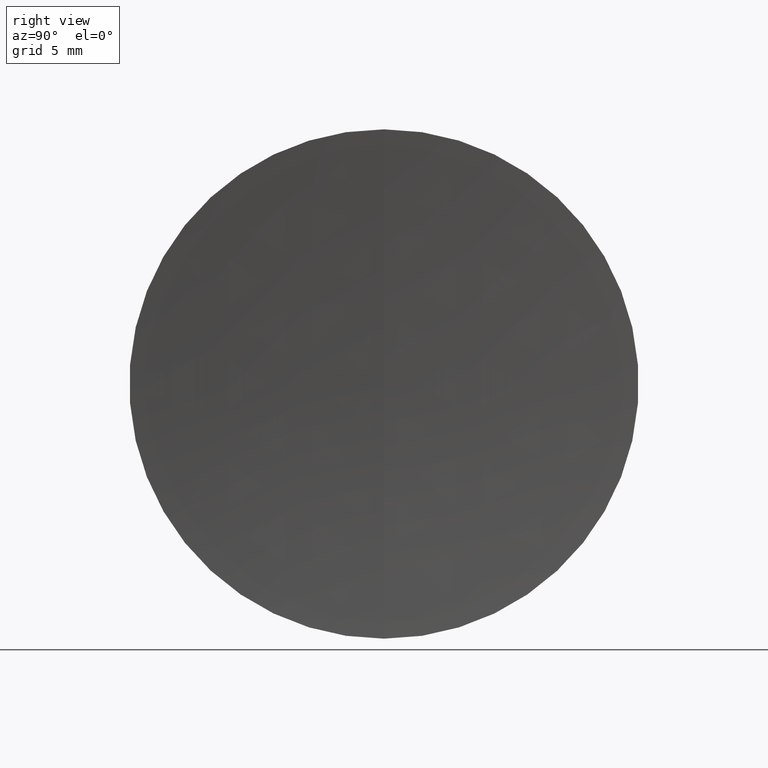
[diagram: clean part render]
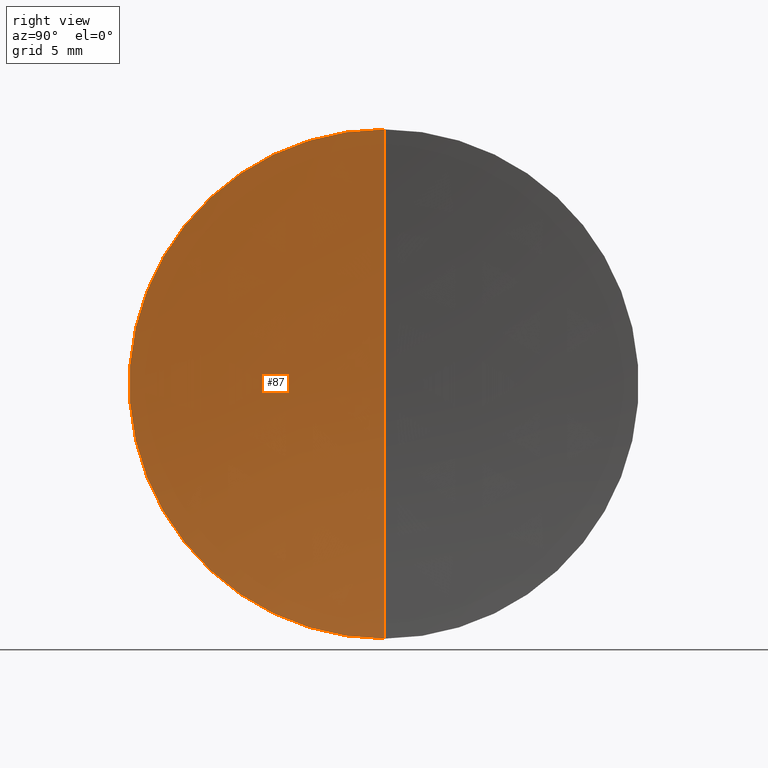
[diagram: same view with one face highlighted and labeled with its STEP entity id]
A machine part, right view. The second image highlights one B-rep face of the part: STEP entity #87.
In plain terms, the highlighted spherical surface has radius 134 mm.
Its self-contained STEP definition (entity closure, byte-faithful):
#1 = AXIS2_PLACEMENT_3D ( 'NONE', #175, #86, #236 ) ;
#3 = ORIENTED_EDGE ( 'NONE', *, *, #345, .F. ) ;
#11 = CIRCLE ( 'NONE', #1, 134.0000000000000000 ) ;
#15 = AXIS2_PLACEMENT_3D ( 'NONE', #334, #314, #52 ) ;
#33 = VERTEX_POINT ( 'NONE', #185 ) ;
#51 = CIRCLE ( 'NONE', #201, 12.70000000000012700 ) ;
#52 = DIRECTION ( 'NONE',  ( 0.0000000000000000000, 0.0000000000000000000, -1.000000000000000000 ) ) ;
#86 = DIRECTION ( 'NONE',  ( 0.0000000000000000000, -1.000000000000000000, -1.224646799147353200E-016 ) ) ;
#87 = ADVANCED_FACE ( 'NONE', ( #266 ), #152, .F. ) ;
#91 = VERTEX_POINT ( 'NONE', #193 ) ;
#95 = DIRECTION ( 'NONE',  ( 0.0000000000000000000, 0.0000000000000000000, 1.000000000000000000 ) ) ;
#120 = CARTESIAN_POINT ( 'NONE',  ( 476.3404997922064000, 0.0000000000000000000, 0.0000000000000000000 ) ) ;
#121 = CARTESIAN_POINT ( 'NONE',  ( 342.9436857372973000, 0.0000000000000000000, 12.70000000000012700 ) ) ;
#149 = ORIENTED_EDGE ( 'NONE', *, *, #283, .F. ) ;
#152 = SPHERICAL_SURFACE ( 'NONE', #15, 134.0000000000000000 ) ;
#156 = ORIENTED_EDGE ( 'NONE', *, *, #230, .T. ) ;
#169 = CARTESIAN_POINT ( 'NONE',  ( 342.9436857372973000, 0.0000000000000000000, 0.0000000000000000000 ) ) ;
#175 = CARTESIAN_POINT ( 'NONE',  ( 476.3404997922064000, 0.0000000000000000000, 0.0000000000000000000 ) ) ;
#184 = VERTEX_POINT ( 'NONE', #121 ) ;
#185 = CARTESIAN_POINT ( 'NONE',  ( 342.3404997922064000, 0.0000000000000000000, -8.205133554287267500E-015 ) ) ;
#188 = AXIS2_PLACEMENT_3D ( 'NONE', #120, #219, #95 ) ;
#193 = CARTESIAN_POINT ( 'NONE',  ( 342.9436857372973000, 1.555301434917154200E-015, -12.70000000000012700 ) ) ;
#201 = AXIS2_PLACEMENT_3D ( 'NONE', #169, #285, #331 ) ;
#219 = DIRECTION ( 'NONE',  ( 0.0000000000000000000, 1.000000000000000000, -0.0000000000000000000 ) ) ;
#230 = EDGE_CURVE ( 'NONE', #91, #33, #292, .T. ) ;
#233 = EDGE_LOOP ( 'NONE', ( #149, #3, #156 ) ) ;
#236 = DIRECTION ( 'NONE',  ( 0.0000000000000000000, 1.224646799147353500E-016, -1.000000000000000000 ) ) ;
#266 = FACE_OUTER_BOUND ( 'NONE', #233, .T. ) ;
#283 = EDGE_CURVE ( 'NONE', #184, #33, #11, .T. ) ;
#285 = DIRECTION ( 'NONE',  ( -1.000000000000000000, -0.0000000000000000000, -0.0000000000000000000 ) ) ;
#292 = CIRCLE ( 'NONE', #188, 134.0000000000000000 ) ;
#314 = DIRECTION ( 'NONE',  ( -0.0000000000000000000, -1.000000000000000000, -0.0000000000000000000 ) ) ;
#331 = DIRECTION ( 'NONE',  ( 0.0000000000000000000, 0.0000000000000000000, 1.000000000000000000 ) ) ;
#334 = CARTESIAN_POINT ( 'NONE',  ( 476.3404997922064000, 0.0000000000000000000, 0.0000000000000000000 ) ) ;
#345 = EDGE_CURVE ( 'NONE', #91, #184, #51, .T. ) ;